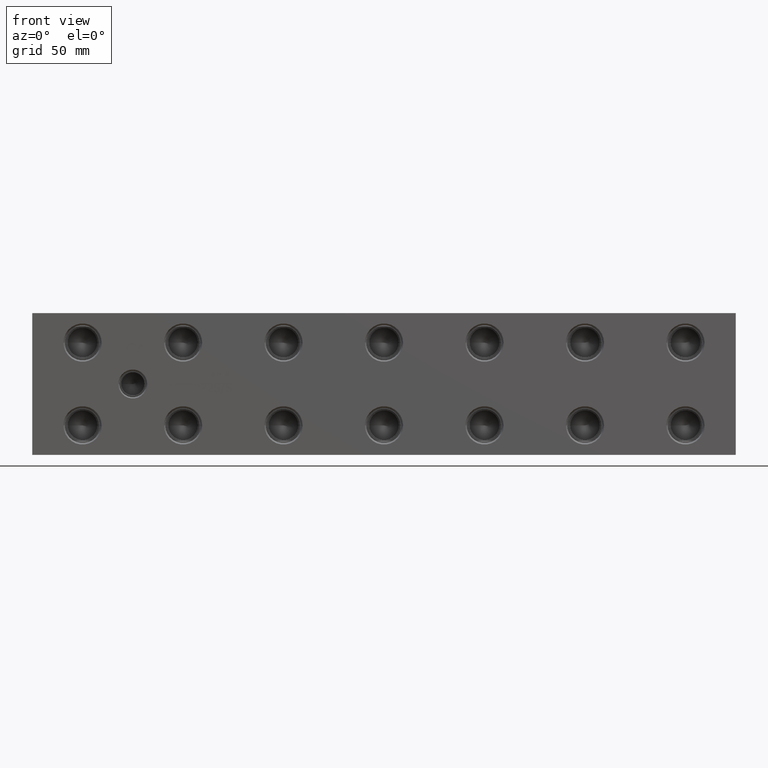
[diagram: clean part render]
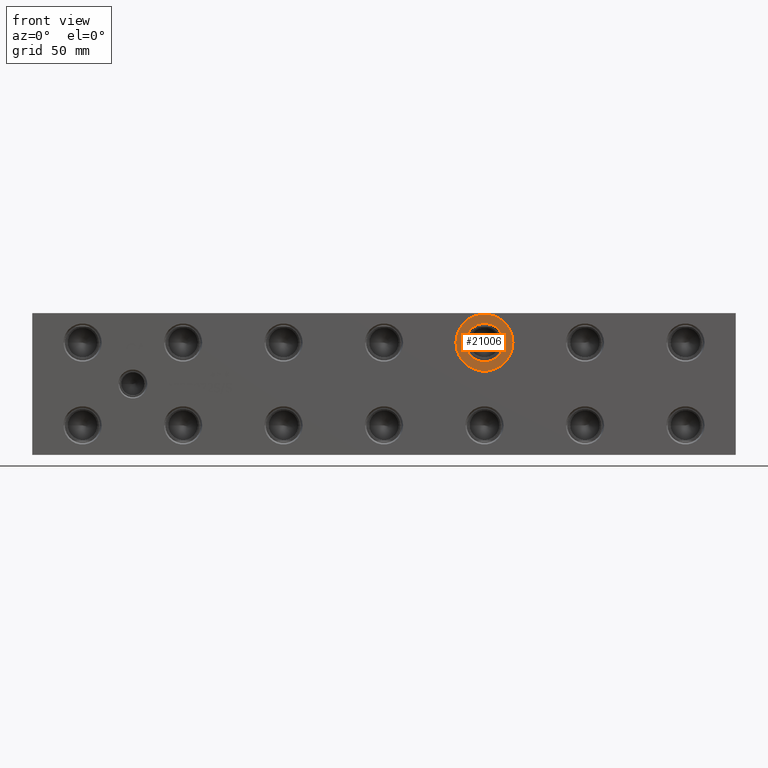
[diagram: same view with one face highlighted and labeled with its STEP entity id]
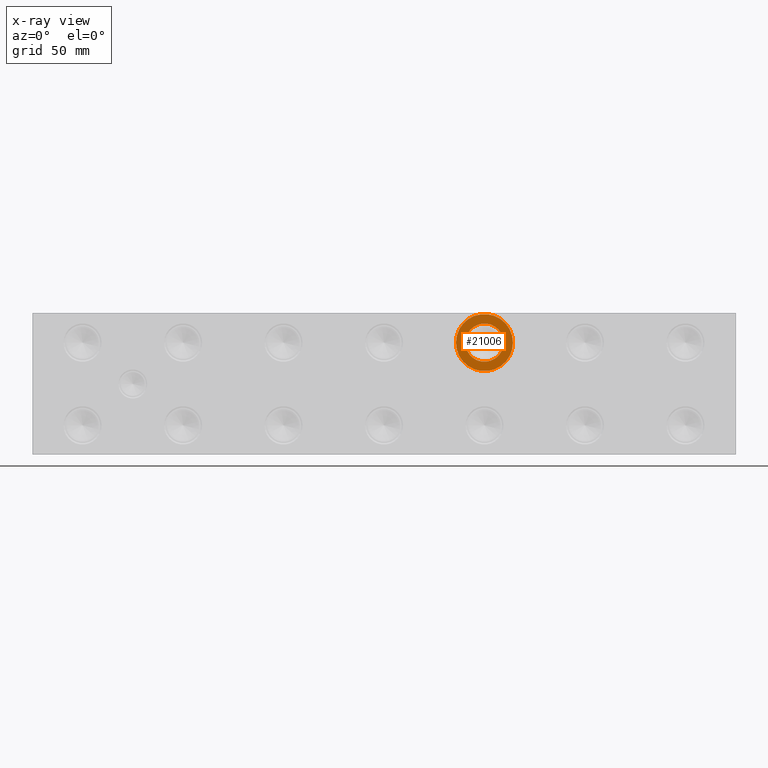
[diagram: x-ray of the same camera — body ghosted, the highlighted face saturated]
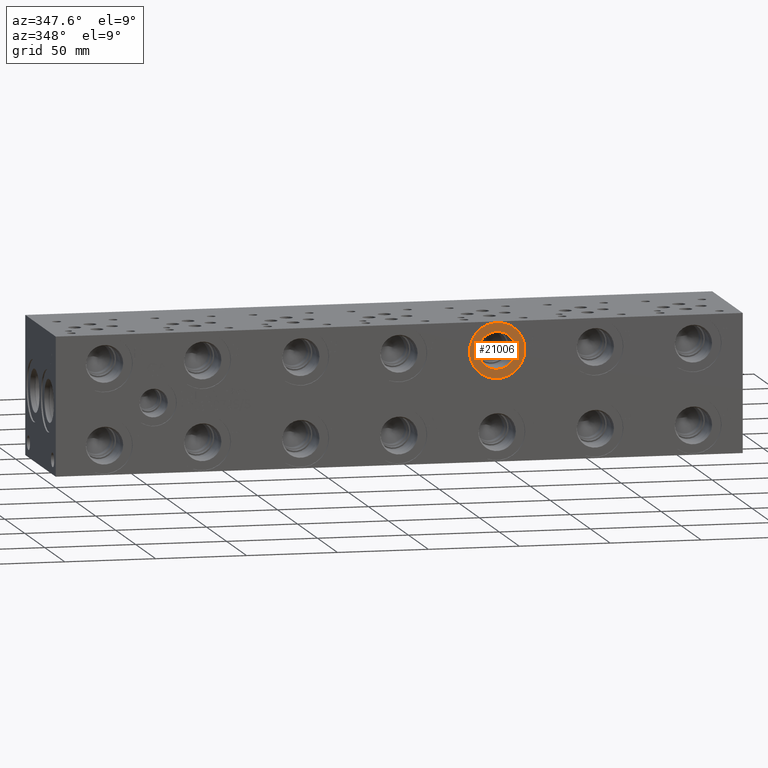
[diagram: same view with one face highlighted and labeled with its STEP entity id]
A machine part, front view. The second image highlights one B-rep face of the part: STEP entity #21006.
The next image is the same camera in x-ray: the body ghosted, the highlighted face saturated — about 0% of this face is hidden behind the body in this view.
A second angle (auxiliary view) of the same face is appended — the face is thin or edge-on in the first view.
In plain terms, the highlighted planar face has unit normal (0, 1, 0).
Its self-contained STEP definition (entity closure, byte-faithful):
#491=CIRCLE('',#22032,15.3162);
#492=CIRCLE('',#22033,15.3162);
#493=CIRCLE('',#22035,10.2997);
#494=CIRCLE('',#22036,10.2997);
#1217=FACE_BOUND('',#3847,.T.);
#1810=PLANE('',#22034);
#2623=FACE_OUTER_BOUND('',#3846,.T.);
#3846=EDGE_LOOP('',(#17438,#17439));
#3847=EDGE_LOOP('',(#17440,#17441));
#9714=VERTEX_POINT('',#35326);
#9715=VERTEX_POINT('',#35328);
#9716=VERTEX_POINT('',#35332);
#9717=VERTEX_POINT('',#35333);
#12470=EDGE_CURVE('',#9714,#9715,#491,.T.);
#12471=EDGE_CURVE('',#9715,#9714,#492,.T.);
#12472=EDGE_CURVE('',#9716,#9717,#493,.T.);
#12473=EDGE_CURVE('',#9717,#9716,#494,.T.);
#17438=ORIENTED_EDGE('',*,*,#12471,.F.);
#17439=ORIENTED_EDGE('',*,*,#12470,.F.);
#17440=ORIENTED_EDGE('',*,*,#12472,.T.);
#17441=ORIENTED_EDGE('',*,*,#12473,.T.);
#21006=ADVANCED_FACE('',(#2623,#1217),#1810,.F.);
#22032=AXIS2_PLACEMENT_3D('',#35329,#25748,#25749);
#22033=AXIS2_PLACEMENT_3D('',#35330,#25750,#25751);
#22034=AXIS2_PLACEMENT_3D('',#35331,#25752,#25753);
#22035=AXIS2_PLACEMENT_3D('',#35334,#25754,#25755);
#22036=AXIS2_PLACEMENT_3D('',#35335,#25756,#25757);
#25748=DIRECTION('center_axis',(0.,1.,0.));
#25749=DIRECTION('ref_axis',(1.,0.,0.));
#25750=DIRECTION('center_axis',(0.,1.,0.));
#25751=DIRECTION('ref_axis',(1.,0.,0.));
#25752=DIRECTION('center_axis',(0.,1.,0.));
#25753=DIRECTION('ref_axis',(0.,0.,1.));
#25754=DIRECTION('center_axis',(0.,1.,0.));
#25755=DIRECTION('ref_axis',(1.,0.,0.));
#25756=DIRECTION('center_axis',(0.,1.,0.));
#25757=DIRECTION('ref_axis',(1.,0.,0.));
#35326=CARTESIAN_POINT('',(227.5586,0.7874,60.325));
#35328=CARTESIAN_POINT('',(258.191,0.7874,60.325));
#35329=CARTESIAN_POINT('Origin',(242.8748,0.7874,60.325));
#35330=CARTESIAN_POINT('Origin',(242.8748,0.7874,60.325));
#35331=CARTESIAN_POINT('Origin',(253.1745,0.7874,60.325));
#35332=CARTESIAN_POINT('',(253.1745,0.7874,60.325));
#35333=CARTESIAN_POINT('',(232.5751,0.7874,60.325));
#35334=CARTESIAN_POINT('Origin',(242.8748,0.7874,60.325));
#35335=CARTESIAN_POINT('Origin',(242.8748,0.7874,60.325));